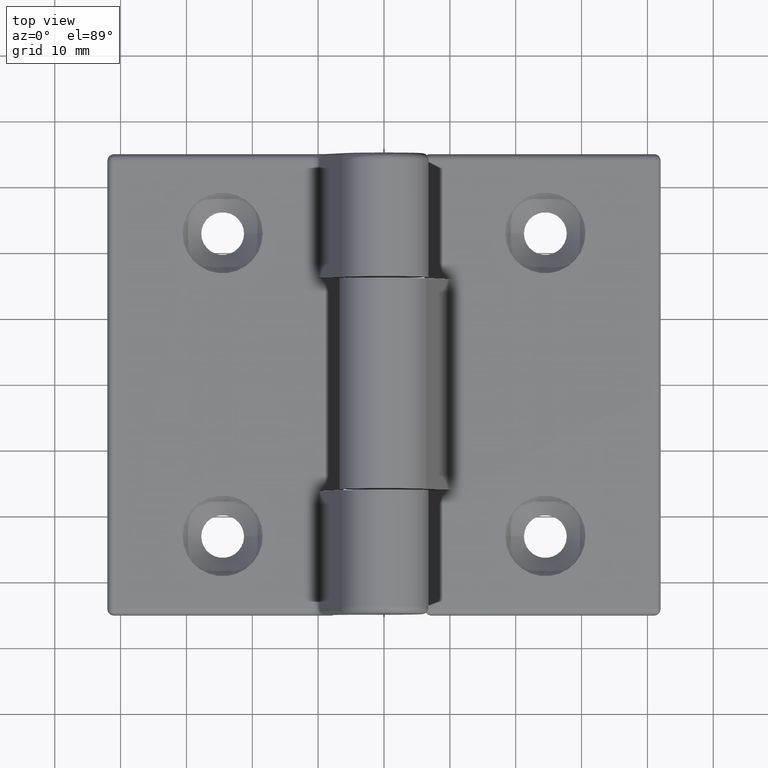
[diagram: clean part render]
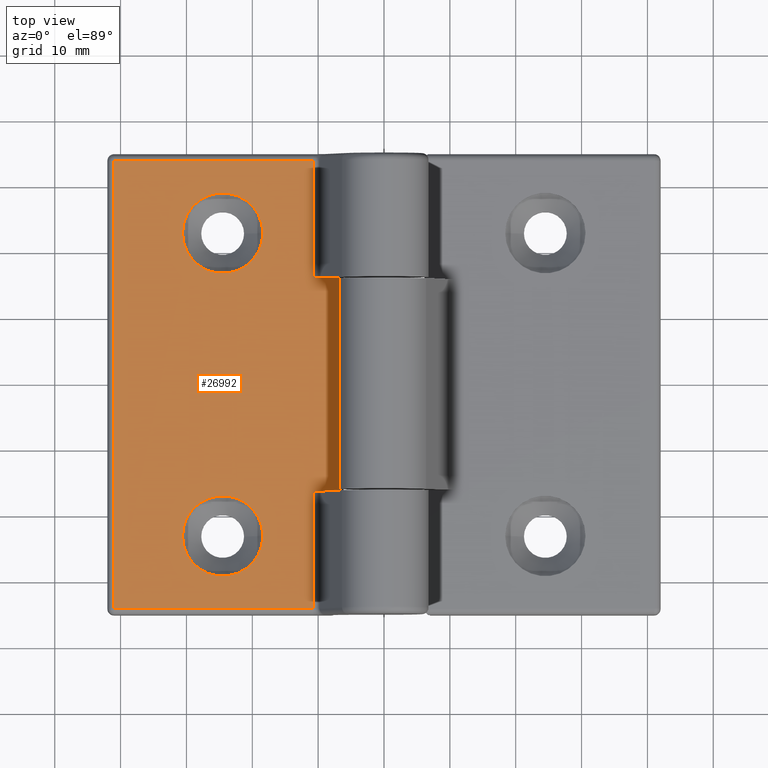
[diagram: same view with one face highlighted and labeled with its STEP entity id]
A machine part, top view. The second image highlights one B-rep face of the part: STEP entity #26992.
In plain terms, the highlighted planar face has unit normal (0, 0, -1).
Its self-contained STEP definition (entity closure, byte-faithful):
#342 = CARTESIAN_POINT ( 'NONE',  ( -41.00000000000000000, -34.00000000000000000, 5.000000000000000000 ) ) ;
#705 = EDGE_CURVE ( 'NONE', #22680, #19790, #14153, .T. ) ;
#829 = ORIENTED_EDGE ( 'NONE', *, *, #26913, .F. ) ;
#1056 = CARTESIAN_POINT ( 'NONE',  ( -42.00000000000000000, 34.00000000000000000, 5.000000000000000000 ) ) ;
#1212 = CARTESIAN_POINT ( 'NONE',  ( -18.39999999999999858, 22.99999999999999645, 5.000000000000002665 ) ) ;
#2189 = LINE ( 'NONE', #20194, #21149 ) ;
#2270 = DIRECTION ( 'NONE',  ( -0.000000000000000000, 1.000000000000000000, -0.000000000000000000 ) ) ;
#3944 = VECTOR ( 'NONE', #10739, 1000.000000000000000 ) ;
#5286 = LINE ( 'NONE', #1056, #28152 ) ;
#5393 = ORIENTED_EDGE ( 'NONE', *, *, #8593, .T. ) ;
#5990 = VERTEX_POINT ( 'NONE', #22035 ) ;
#6529 = EDGE_CURVE ( 'NONE', #23869, #23869, #28851, .T. ) ;
#6556 = LINE ( 'NONE', #14864, #23691 ) ;
#6590 = DIRECTION ( 'NONE',  ( -0.000000000000000000, -1.000000000000000000, -0.000000000000000000 ) ) ;
#6645 = EDGE_CURVE ( 'NONE', #20478, #15294, #22573, .T. ) ;
#6917 = DIRECTION ( 'NONE',  ( -1.000000000000000000, 0.000000000000000000, -2.774597523730342882E-17 ) ) ;
#7374 = ORIENTED_EDGE ( 'NONE', *, *, #22707, .T. ) ;
#7820 = EDGE_CURVE ( 'NONE', #12384, #20478, #15328, .T. ) ;
#8231 = VERTEX_POINT ( 'NONE', #19251 ) ;
#8593 = EDGE_CURVE ( 'NONE', #22680, #8231, #5286, .T. ) ;
#8829 = DIRECTION ( 'NONE',  ( -0.000000000000000000, -0.000000000000000000, 1.000000000000000000 ) ) ;
#9408 = DIRECTION ( 'NONE',  ( 2.774597523730342882E-17, 0.000000000000000000, -1.000000000000000000 ) ) ;
#9773 = EDGE_LOOP ( 'NONE', ( #829 ) ) ;
#9862 = CARTESIAN_POINT ( 'NONE',  ( -10.73918719489563678, 16.19999999999999929, 5.000000000000000888 ) ) ;
#10661 = ORIENTED_EDGE ( 'NONE', *, *, #6645, .F. ) ;
#10739 = DIRECTION ( 'NONE',  ( 1.000000000000000000, -0.000000000000000000, 2.774597523730342882E-17 ) ) ;
#10806 = CIRCLE ( 'NONE', #11555, 6.100000000000001421 ) ;
#11326 = EDGE_LOOP ( 'NONE', ( #13417, #17520, #10661, #12972, #7374, #12991, #29324, #5393 ) ) ;
#11555 = AXIS2_PLACEMENT_3D ( 'NONE', #24947, #20831, #18632 ) ;
#11609 = AXIS2_PLACEMENT_3D ( 'NONE', #29571, #8829, #17976 ) ;
#11644 = CARTESIAN_POINT ( 'NONE',  ( -18.39999999999999147, -23.00000000000000355, 5.000000000000002665 ) ) ;
#12384 = VERTEX_POINT ( 'NONE', #17521 ) ;
#12442 = VERTEX_POINT ( 'NONE', #11644 ) ;
#12916 = CARTESIAN_POINT ( 'NONE',  ( -42.00000000000000000, -34.00000000000000000, 5.000000000000000000 ) ) ;
#12972 = ORIENTED_EDGE ( 'NONE', *, *, #7820, .F. ) ;
#12991 = ORIENTED_EDGE ( 'NONE', *, *, #13578, .T. ) ;
#13288 = FACE_BOUND ( 'NONE', #9773, .T. ) ;
#13417 = ORIENTED_EDGE ( 'NONE', *, *, #25595, .T. ) ;
#13578 = EDGE_CURVE ( 'NONE', #5990, #19790, #2189, .T. ) ;
#13592 = CARTESIAN_POINT ( 'NONE',  ( -10.73918719489563678, 35.00000000000000000, 5.000000000000000888 ) ) ;
#13702 = VECTOR ( 'NONE', #20524, 1000.000000000000000 ) ;
#13906 = CARTESIAN_POINT ( 'NONE',  ( -10.73918719489563678, 34.00000000000000000, 5.000000000000000888 ) ) ;
#14153 = LINE ( 'NONE', #22341, #26986 ) ;
#14609 = VECTOR ( 'NONE', #15523, 1000.000000000000000 ) ;
#14864 = CARTESIAN_POINT ( 'NONE',  ( -41.00000000000000000, 35.00000000000000000, 5.000000000000000000 ) ) ;
#15294 = VERTEX_POINT ( 'NONE', #15632 ) ;
#15328 = LINE ( 'NONE', #26876, #14609 ) ;
#15523 = DIRECTION ( 'NONE',  ( -1.000000000000000000, -0.000000000000000000, 1.886898575600815116E-16 ) ) ;
#15632 = CARTESIAN_POINT ( 'NONE',  ( -10.73918719489563678, -34.00000000000000000, 5.000000000000000888 ) ) ;
#16087 = CARTESIAN_POINT ( 'NONE',  ( -42.00000000000000000, 35.00000000000000000, 5.000000000000000000 ) ) ;
#16227 = DIRECTION ( 'NONE',  ( -1.000000000000000000, -0.000000000000000000, 1.886898575600815116E-16 ) ) ;
#16694 = AXIS2_PLACEMENT_3D ( 'NONE', #16087, #9408, #6917 ) ;
#17520 = ORIENTED_EDGE ( 'NONE', *, *, #20250, .T. ) ;
#17521 = CARTESIAN_POINT ( 'NONE',  ( -6.142428528562851930, -16.19999999999999929, 5.000000000000000000 ) ) ;
#17976 = DIRECTION ( 'NONE',  ( 1.000000000000000000, 0.000000000000000000, 0.000000000000000000 ) ) ;
#18632 = DIRECTION ( 'NONE',  ( 1.000000000000000000, 0.000000000000000000, 0.000000000000000000 ) ) ;
#19251 = CARTESIAN_POINT ( 'NONE',  ( -41.00000000000000000, 34.00000000000000000, 5.000000000000000000 ) ) ;
#19790 = VERTEX_POINT ( 'NONE', #9862 ) ;
#20194 = CARTESIAN_POINT ( 'NONE',  ( -10.73918719489563678, 16.19999999999999929, 5.000000000000000888 ) ) ;
#20250 = EDGE_CURVE ( 'NONE', #29415, #15294, #26492, .T. ) ;
#20478 = VERTEX_POINT ( 'NONE', #26651 ) ;
#20524 = DIRECTION ( 'NONE',  ( -0.000000000000000000, -1.000000000000000000, -0.000000000000000000 ) ) ;
#20831 = DIRECTION ( 'NONE',  ( -0.000000000000000000, -0.000000000000000000, 1.000000000000000000 ) ) ;
#20933 = PLANE ( 'NONE',  #16694 ) ;
#21149 = VECTOR ( 'NONE', #16227, 1000.000000000000000 ) ;
#22035 = CARTESIAN_POINT ( 'NONE',  ( -6.142428528562851930, 16.19999999999999929, 5.000000000000000000 ) ) ;
#22111 = EDGE_LOOP ( 'NONE', ( #25204 ) ) ;
#22341 = CARTESIAN_POINT ( 'NONE',  ( -10.73918719489563678, 35.00000000000000000, 5.000000000000000888 ) ) ;
#22573 = LINE ( 'NONE', #13592, #13702 ) ;
#22680 = VERTEX_POINT ( 'NONE', #13906 ) ;
#22707 = EDGE_CURVE ( 'NONE', #12384, #5990, #28845, .T. ) ;
#23691 = VECTOR ( 'NONE', #28537, 1000.000000000000000 ) ;
#23869 = VERTEX_POINT ( 'NONE', #1212 ) ;
#24947 = CARTESIAN_POINT ( 'NONE',  ( -24.49999999999999289, -23.00000000000000355, 5.000000000000002665 ) ) ;
#25204 = ORIENTED_EDGE ( 'NONE', *, *, #6529, .F. ) ;
#25357 = CARTESIAN_POINT ( 'NONE',  ( -6.142428528562851930, -16.19999999999999929, 5.000000000000000000 ) ) ;
#25406 = FACE_BOUND ( 'NONE', #22111, .T. ) ;
#25595 = EDGE_CURVE ( 'NONE', #8231, #29415, #6556, .T. ) ;
#26492 = LINE ( 'NONE', #12916, #3944 ) ;
#26651 = CARTESIAN_POINT ( 'NONE',  ( -10.73918719489563678, -16.19999999999999929, 5.000000000000000888 ) ) ;
#26679 = VECTOR ( 'NONE', #2270, 1000.000000000000000 ) ;
#26876 = CARTESIAN_POINT ( 'NONE',  ( -10.73918719489563678, -16.19999999999999929, 5.000000000000000888 ) ) ;
#26913 = EDGE_CURVE ( 'NONE', #12442, #12442, #10806, .T. ) ;
#26986 = VECTOR ( 'NONE', #6590, 1000.000000000000000 ) ;
#26992 = ADVANCED_FACE ( 'NONE', ( #25406, #13288, #27568 ), #20933, .F. ) ;
#27568 = FACE_OUTER_BOUND ( 'NONE', #11326, .T. ) ;
#28152 = VECTOR ( 'NONE', #28247, 1000.000000000000000 ) ;
#28247 = DIRECTION ( 'NONE',  ( -1.000000000000000000, -0.000000000000000000, -2.774597523730342882E-17 ) ) ;
#28537 = DIRECTION ( 'NONE',  ( 0.000000000000000000, -1.000000000000000000, 0.000000000000000000 ) ) ;
#28845 = LINE ( 'NONE', #25357, #26679 ) ;
#28851 = CIRCLE ( 'NONE', #11609, 6.100000000000001421 ) ;
#29324 = ORIENTED_EDGE ( 'NONE', *, *, #705, .F. ) ;
#29415 = VERTEX_POINT ( 'NONE', #342 ) ;
#29571 = CARTESIAN_POINT ( 'NONE',  ( -24.50000000000000000, 22.99999999999999645, 5.000000000000002665 ) ) ;